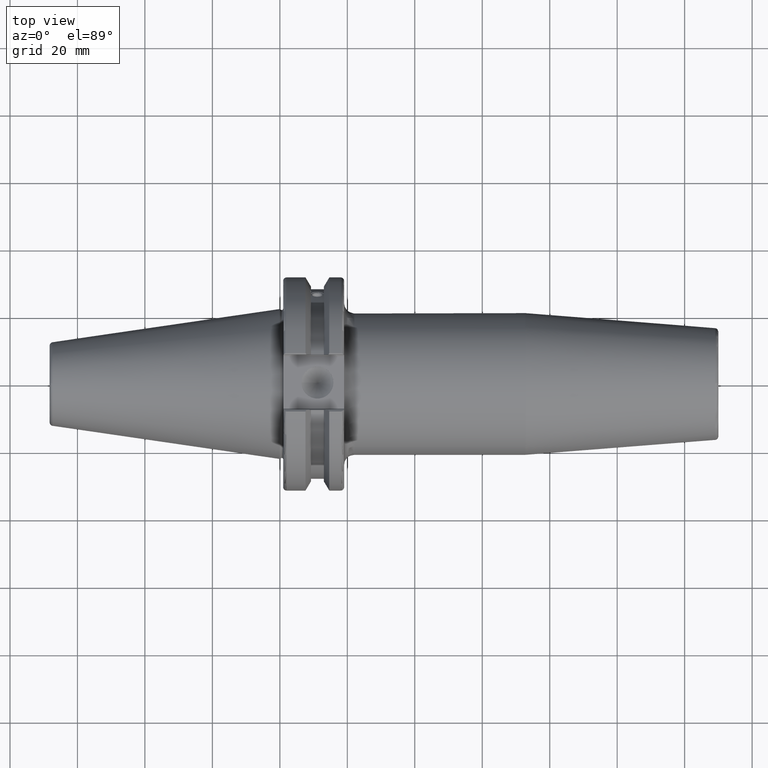
[diagram: clean part render]
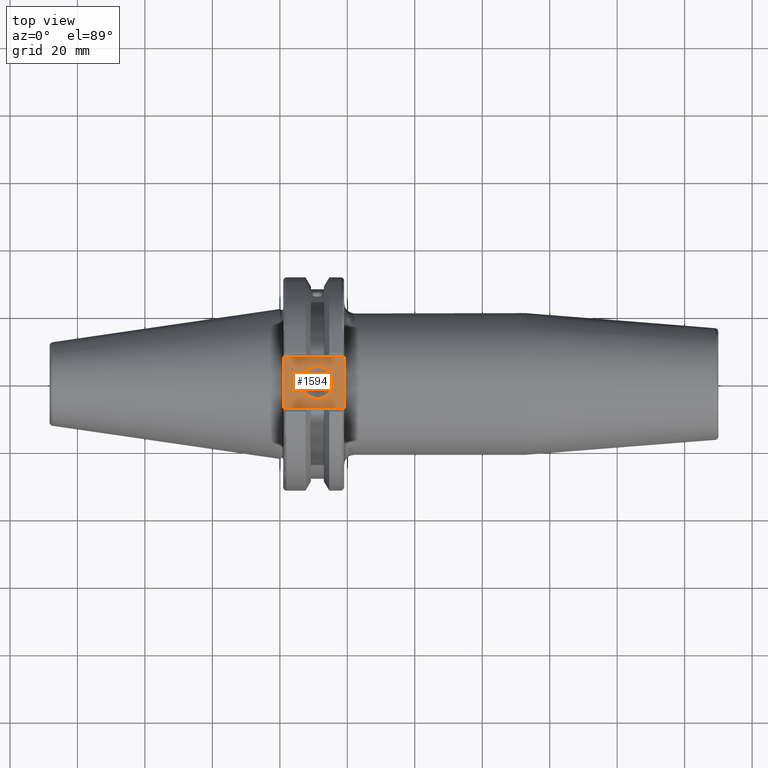
[diagram: same view with one face highlighted and labeled with its STEP entity id]
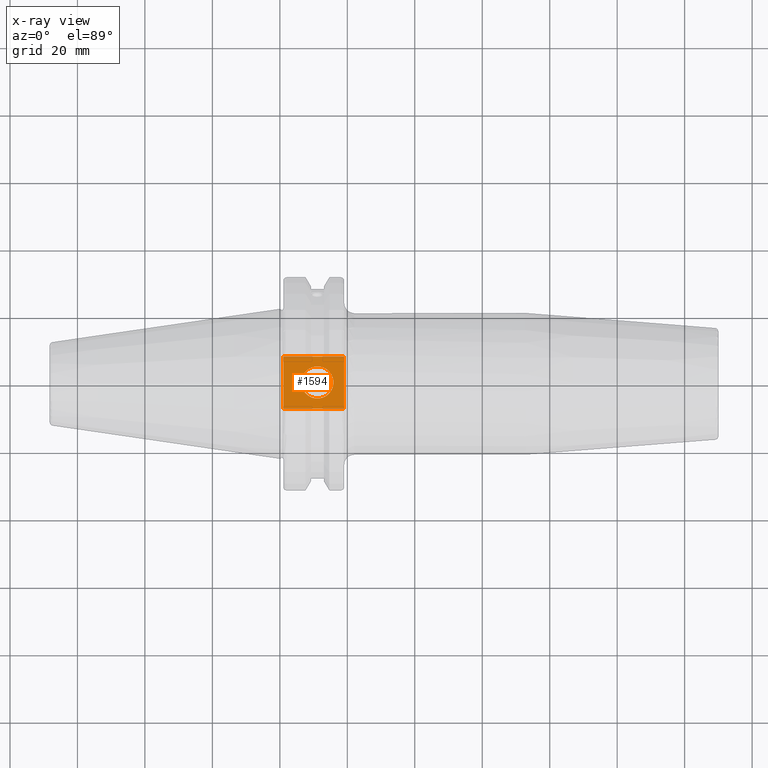
[diagram: x-ray of the same camera — body ghosted, the highlighted face saturated]
A machine part, top view. The second image highlights one B-rep face of the part: STEP entity #1594.
The next image is the same camera in x-ray: the body ghosted, the highlighted face saturated — about 0% of this face is hidden behind the body in this view.
In plain terms, the highlighted planar face has unit normal (0, 0, 1).
Its self-contained STEP definition (entity closure, byte-faithful):
#82=FACE_BOUND('',#365,.T.);
#119=PLANE('',#1796);
#261=FACE_OUTER_BOUND('',#364,.T.);
#364=EDGE_LOOP('',(#1478,#1479,#1480,#1481));
#365=EDGE_LOOP('',(#1482));
#410=LINE('',#2788,#502);
#429=LINE('',#2873,#521);
#449=LINE('',#3041,#541);
#451=LINE('',#3044,#543);
#502=VECTOR('',#2068,10.);
#521=VECTOR('',#2101,10.);
#541=VECTOR('',#2175,10.);
#543=VECTOR('',#2179,10.);
#619=CIRCLE('',#1781,4.7625);
#727=VERTEX_POINT('',#2785);
#728=VERTEX_POINT('',#2787);
#749=VERTEX_POINT('',#2870);
#750=VERTEX_POINT('',#2872);
#783=VERTEX_POINT('',#3074);
#921=EDGE_CURVE('',#727,#728,#410,.T.);
#949=EDGE_CURVE('',#749,#750,#429,.T.);
#996=EDGE_CURVE('',#750,#727,#449,.T.);
#998=EDGE_CURVE('',#728,#749,#451,.T.);
#1010=EDGE_CURVE('',#783,#783,#619,.T.);
#1478=ORIENTED_EDGE('',*,*,#996,.F.);
#1479=ORIENTED_EDGE('',*,*,#949,.F.);
#1480=ORIENTED_EDGE('',*,*,#998,.F.);
#1481=ORIENTED_EDGE('',*,*,#921,.F.);
#1482=ORIENTED_EDGE('',*,*,#1010,.T.);
#1594=ADVANCED_FACE('',(#261,#82),#119,.T.);
#1781=AXIS2_PLACEMENT_3D('',#3075,#2211,#2212);
#1796=AXIS2_PLACEMENT_3D('',#3091,#2242,#2243);
#2068=DIRECTION('',(0.,1.,0.));
#2101=DIRECTION('',(0.,-1.,0.));
#2175=DIRECTION('',(-1.,1.16558847729675E-16,0.));
#2179=DIRECTION('',(1.,0.,0.));
#2211=DIRECTION('center_axis',(0.,0.,-1.));
#2212=DIRECTION('ref_axis',(1.,0.,0.));
#2242=DIRECTION('center_axis',(0.,0.,1.));
#2243=DIRECTION('ref_axis',(1.,0.,0.));
#2785=CARTESIAN_POINT('',(0.999999999999999,-7.68999999999999,25.));
#2787=CARTESIAN_POINT('',(0.999999999999999,7.69,25.));
#2788=CARTESIAN_POINT('',(0.999999999999999,15.875,25.));
#2870=CARTESIAN_POINT('',(19.05,7.69,25.));
#2872=CARTESIAN_POINT('',(19.05,-7.69,25.));
#2873=CARTESIAN_POINT('',(19.05,0.,25.));
#3041=CARTESIAN_POINT('',(7.81,-7.69,25.));
#3044=CARTESIAN_POINT('',(17.335,7.69,25.));
#3074=CARTESIAN_POINT('',(6.3716,-5.83238038093927E-16,25.));
#3075=CARTESIAN_POINT('Origin',(11.1341,0.,25.));
#3091=CARTESIAN_POINT('Origin',(14.62,0.,25.));